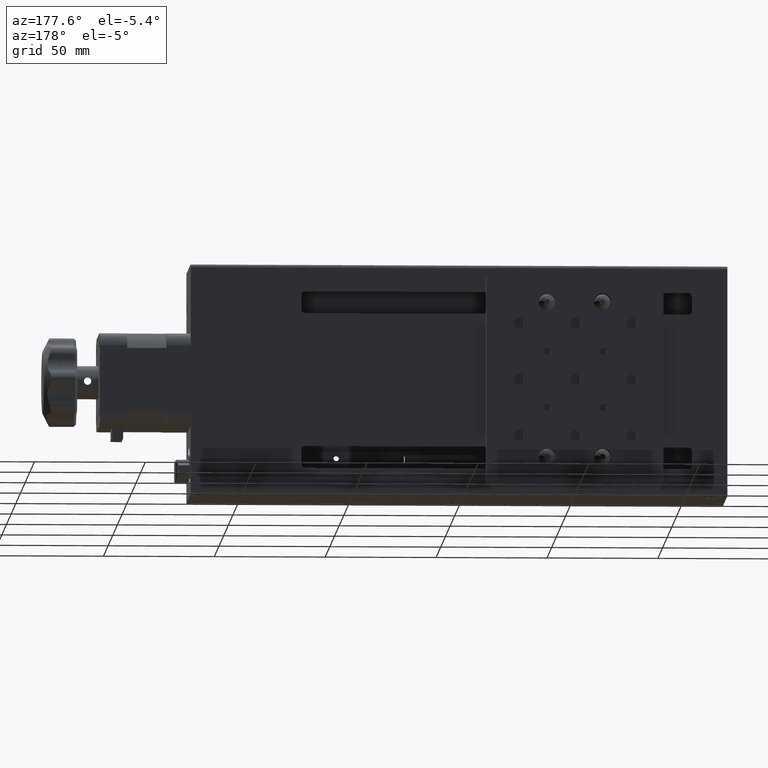
[diagram: clean part render]
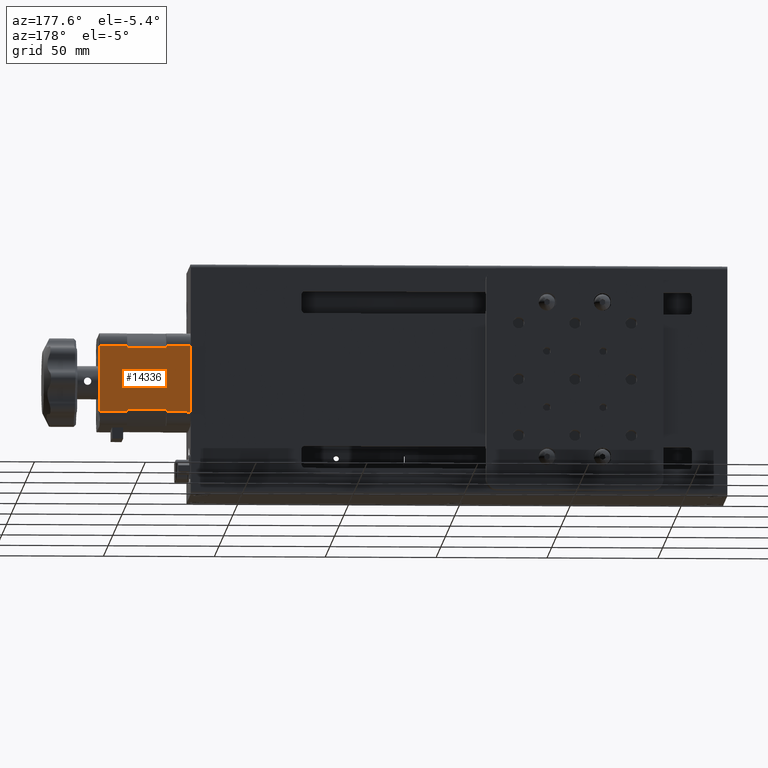
[diagram: same view with one face highlighted and labeled with its STEP entity id]
A machine part, auxiliary view. The second image highlights one B-rep face of the part: STEP entity #14336.
In plain terms, the highlighted planar face has unit normal (-0, -1, -0).
Its self-contained STEP definition (entity closure, byte-faithful):
#16 = DIRECTION ( 'NONE',  ( 8.997944700177162400E-031, -2.775557561562890400E-016, 1.000000000000000000 ) ) ;
#579 = ORIENTED_EDGE ( 'NONE', *, *, #20546, .T. ) ;
#1251 = VECTOR ( 'NONE', #5540, 1000.000000000000000 ) ;
#1343 = EDGE_CURVE ( 'NONE', #4363, #9624, #32204, .T. ) ;
#2420 = VECTOR ( 'NONE', #33930, 1000.000000000000000 ) ;
#2556 = EDGE_CURVE ( 'NONE', #10303, #8740, #32881, .T. ) ;
#2844 = CARTESIAN_POINT ( 'NONE',  ( 149.6999999999999900, 48.50000000000000000, -15.00000000000006200 ) ) ;
#2956 = CARTESIAN_POINT ( 'NONE',  ( 121.0000000000000100, 48.50000000000000000, -15.00000000000006200 ) ) ;
#3144 = DIRECTION ( 'NONE',  ( 8.997944700177162400E-031, -2.775557561562890400E-016, 1.000000000000000000 ) ) ;
#3471 = CARTESIAN_POINT ( 'NONE',  ( 149.6999999999999900, 48.50000000000000000, -13.83916543726540900 ) ) ;
#4050 = VECTOR ( 'NONE', #31803, 1000.000000000000000 ) ;
#4255 = CARTESIAN_POINT ( 'NONE',  ( 132.0000000000000000, 48.50000000000000000, -13.83916543726540900 ) ) ;
#4363 = VERTEX_POINT ( 'NONE', #10639 ) ;
#4624 = CARTESIAN_POINT ( 'NONE',  ( 162.0000000000000000, 48.49999999999998600, 14.99999999999999300 ) ) ;
#4666 = EDGE_CURVE ( 'NONE', #4363, #32545, #18478, .T. ) ;
#5075 = VECTOR ( 'NONE', #18022, 1000.000000000000000 ) ;
#5493 = VERTEX_POINT ( 'NONE', #3471 ) ;
#5540 = DIRECTION ( 'NONE',  ( 1.000000000000000000, -1.734723475976786400E-016, -9.479427186273966100E-031 ) ) ;
#5750 = ORIENTED_EDGE ( 'NONE', *, *, #31957, .T. ) ;
#6131 = CARTESIAN_POINT ( 'NONE',  ( 149.6999999999999900, 48.50000000000000000, 14.99999999999999300 ) ) ;
#6224 = VERTEX_POINT ( 'NONE', #6131 ) ;
#6409 = CARTESIAN_POINT ( 'NONE',  ( 162.0000000000000000, 48.50000000000000000, -15.00000000000006200 ) ) ;
#6892 = PLANE ( 'NONE',  #22992 ) ;
#7000 = DIRECTION ( 'NONE',  ( -1.734723475976786400E-016, -1.000000000000000000, -2.775557561562890400E-016 ) ) ;
#7360 = ORIENTED_EDGE ( 'NONE', *, *, #14999, .T. ) ;
#8055 = DIRECTION ( 'NONE',  ( 8.997944700177162400E-031, -2.775557561562890400E-016, 1.000000000000000000 ) ) ;
#8216 = EDGE_CURVE ( 'NONE', #29663, #33463, #11347, .T. ) ;
#8455 = ORIENTED_EDGE ( 'NONE', *, *, #10556, .F. ) ;
#8670 = CARTESIAN_POINT ( 'NONE',  ( 149.6999999999999900, 48.50000000000000000, 20.99999999999999300 ) ) ;
#8740 = VERTEX_POINT ( 'NONE', #33225 ) ;
#9624 = VERTEX_POINT ( 'NONE', #15780 ) ;
#9931 = CARTESIAN_POINT ( 'NONE',  ( 162.0000000000000000, 48.50000000000000000, -15.00000000000006200 ) ) ;
#10303 = VERTEX_POINT ( 'NONE', #2956 ) ;
#10556 = EDGE_CURVE ( 'NONE', #16231, #5493, #16873, .T. ) ;
#10639 = CARTESIAN_POINT ( 'NONE',  ( 162.0000000000000000, 48.50000000000000000, -15.00000000000006200 ) ) ;
#11232 = VECTOR ( 'NONE', #28270, 1000.000000000000000 ) ;
#11347 = LINE ( 'NONE', #21797, #33142 ) ;
#12301 = EDGE_CURVE ( 'NONE', #29663, #6224, #31165, .T. ) ;
#12775 = VECTOR ( 'NONE', #3144, 1000.000000000000000 ) ;
#13169 = LINE ( 'NONE', #34428, #5075 ) ;
#13771 = CARTESIAN_POINT ( 'NONE',  ( 132.0000000000000000, 48.50000000000000000, -15.00000000000006200 ) ) ;
#13869 = CARTESIAN_POINT ( 'NONE',  ( 162.0000000000000000, 48.49999999999998600, 14.99999999999999300 ) ) ;
#14013 = CARTESIAN_POINT ( 'NONE',  ( 121.0000000000000100, 48.50000000000000000, 20.99999999999999300 ) ) ;
#14263 = ORIENTED_EDGE ( 'NONE', *, *, #8216, .F. ) ;
#14336 = ADVANCED_FACE ( 'NONE', ( #31595 ), #6892, .F. ) ;
#14999 = EDGE_CURVE ( 'NONE', #27320, #10303, #34005, .T. ) ;
#15780 = CARTESIAN_POINT ( 'NONE',  ( 162.0000000000000000, 48.49999999999998600, 14.99999999999999300 ) ) ;
#16231 = VERTEX_POINT ( 'NONE', #33537 ) ;
#16487 = VECTOR ( 'NONE', #23714, 1000.000000000000000 ) ;
#16792 = LINE ( 'NONE', #32393, #24066 ) ;
#16873 = LINE ( 'NONE', #4255, #24157 ) ;
#17311 = LINE ( 'NONE', #4624, #16487 ) ;
#17459 = VECTOR ( 'NONE', #25061, 1000.000000000000000 ) ;
#17873 = ORIENTED_EDGE ( 'NONE', *, *, #1343, .F. ) ;
#18022 = DIRECTION ( 'NONE',  ( 8.997944700177162400E-031, -2.775557561562890400E-016, 1.000000000000000000 ) ) ;
#18217 = ORIENTED_EDGE ( 'NONE', *, *, #12301, .T. ) ;
#18478 = LINE ( 'NONE', #6409, #11232 ) ;
#19218 = ORIENTED_EDGE ( 'NONE', *, *, #4666, .T. ) ;
#19299 = ORIENTED_EDGE ( 'NONE', *, *, #25788, .F. ) ;
#19431 = CARTESIAN_POINT ( 'NONE',  ( 132.0000000000000000, 48.50000000000000000, 14.99999999999999300 ) ) ;
#20546 = EDGE_CURVE ( 'NONE', #32545, #5493, #30644, .T. ) ;
#20547 = ORIENTED_EDGE ( 'NONE', *, *, #23805, .F. ) ;
#20608 = DIRECTION ( 'NONE',  ( 1.000000000000000000, -1.734723475976786400E-016, -9.479427186273966100E-031 ) ) ;
#20841 = EDGE_CURVE ( 'NONE', #6224, #9624, #17311, .T. ) ;
#21797 = CARTESIAN_POINT ( 'NONE',  ( 132.0000000000000000, 48.50000000000000000, 13.83916543726532600 ) ) ;
#22221 = LINE ( 'NONE', #13869, #1251 ) ;
#22309 = VERTEX_POINT ( 'NONE', #19431 ) ;
#22992 = AXIS2_PLACEMENT_3D ( 'NONE', #23397, #7000, #26162 ) ;
#23397 = CARTESIAN_POINT ( 'NONE',  ( 162.0000000000000000, 48.49999999999998600, 20.99999999999999300 ) ) ;
#23714 = DIRECTION ( 'NONE',  ( 1.000000000000000000, -1.734723475976786400E-016, -9.479427186273966100E-031 ) ) ;
#23805 = EDGE_CURVE ( 'NONE', #33463, #22309, #16792, .T. ) ;
#24066 = VECTOR ( 'NONE', #16, 1000.000000000000000 ) ;
#24075 = VECTOR ( 'NONE', #8055, 1000.000000000000000 ) ;
#24157 = VECTOR ( 'NONE', #20608, 1000.000000000000000 ) ;
#24878 = ORIENTED_EDGE ( 'NONE', *, *, #20841, .T. ) ;
#25061 = DIRECTION ( 'NONE',  ( 8.997944700177162400E-031, -2.775557561562890400E-016, 1.000000000000000000 ) ) ;
#25788 = EDGE_CURVE ( 'NONE', #27320, #16231, #13169, .T. ) ;
#26162 = DIRECTION ( 'NONE',  ( -1.000000000000000000, 1.734723475976786400E-016, 9.479427186273966100E-031 ) ) ;
#26481 = CARTESIAN_POINT ( 'NONE',  ( 132.0000000000000000, 48.50000000000000000, 13.83916543726532600 ) ) ;
#27124 = CARTESIAN_POINT ( 'NONE',  ( 149.6999999999999900, 48.50000000000000000, 13.83916543726532600 ) ) ;
#27320 = VERTEX_POINT ( 'NONE', #13771 ) ;
#28270 = DIRECTION ( 'NONE',  ( -1.000000000000000000, 1.734723475976786400E-016, 9.479427186273966100E-031 ) ) ;
#29663 = VERTEX_POINT ( 'NONE', #27124 ) ;
#29806 = CARTESIAN_POINT ( 'NONE',  ( 162.0000000000000000, 48.49999999999998600, 20.99999999999999300 ) ) ;
#30644 = LINE ( 'NONE', #31174, #2420 ) ;
#31165 = LINE ( 'NONE', #8670, #17459 ) ;
#31174 = CARTESIAN_POINT ( 'NONE',  ( 149.6999999999999900, 48.50000000000000000, 20.99999999999999300 ) ) ;
#31595 = FACE_OUTER_BOUND ( 'NONE', #34788, .T. ) ;
#31803 = DIRECTION ( 'NONE',  ( -1.000000000000000000, 1.734723475976786400E-016, 9.479427186273966100E-031 ) ) ;
#31957 = EDGE_CURVE ( 'NONE', #8740, #22309, #22221, .T. ) ;
#32053 = ORIENTED_EDGE ( 'NONE', *, *, #2556, .T. ) ;
#32204 = LINE ( 'NONE', #29806, #24075 ) ;
#32393 = CARTESIAN_POINT ( 'NONE',  ( 132.0000000000000000, 48.50000000000000000, 20.99999999999999300 ) ) ;
#32545 = VERTEX_POINT ( 'NONE', #2844 ) ;
#32661 = DIRECTION ( 'NONE',  ( -1.000000000000000000, 1.734723475976786400E-016, 9.479427186273966100E-031 ) ) ;
#32881 = LINE ( 'NONE', #14013, #12775 ) ;
#33142 = VECTOR ( 'NONE', #32661, 1000.000000000000000 ) ;
#33225 = CARTESIAN_POINT ( 'NONE',  ( 121.0000000000000100, 48.50000000000000000, 14.99999999999999300 ) ) ;
#33463 = VERTEX_POINT ( 'NONE', #26481 ) ;
#33537 = CARTESIAN_POINT ( 'NONE',  ( 132.0000000000000000, 48.50000000000000000, -13.83916543726540900 ) ) ;
#33930 = DIRECTION ( 'NONE',  ( 8.997944700177162400E-031, -2.775557561562890400E-016, 1.000000000000000000 ) ) ;
#34005 = LINE ( 'NONE', #9931, #4050 ) ;
#34428 = CARTESIAN_POINT ( 'NONE',  ( 132.0000000000000000, 48.50000000000000000, 20.99999999999999300 ) ) ;
#34788 = EDGE_LOOP ( 'NONE', ( #19299, #7360, #32053, #5750, #20547, #14263, #18217, #24878, #17873, #19218, #579, #8455 ) ) ;